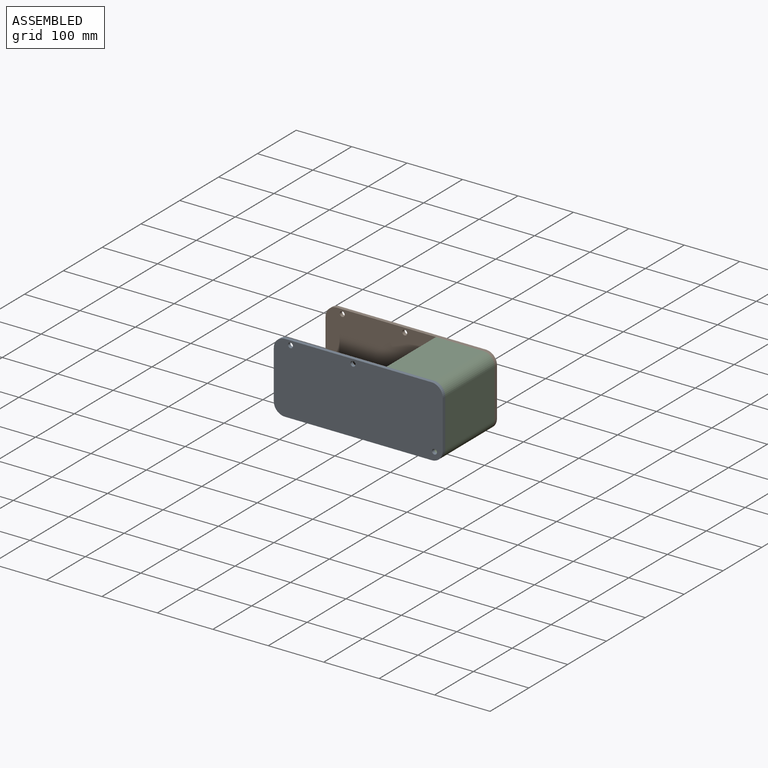
[diagram: assembled view]
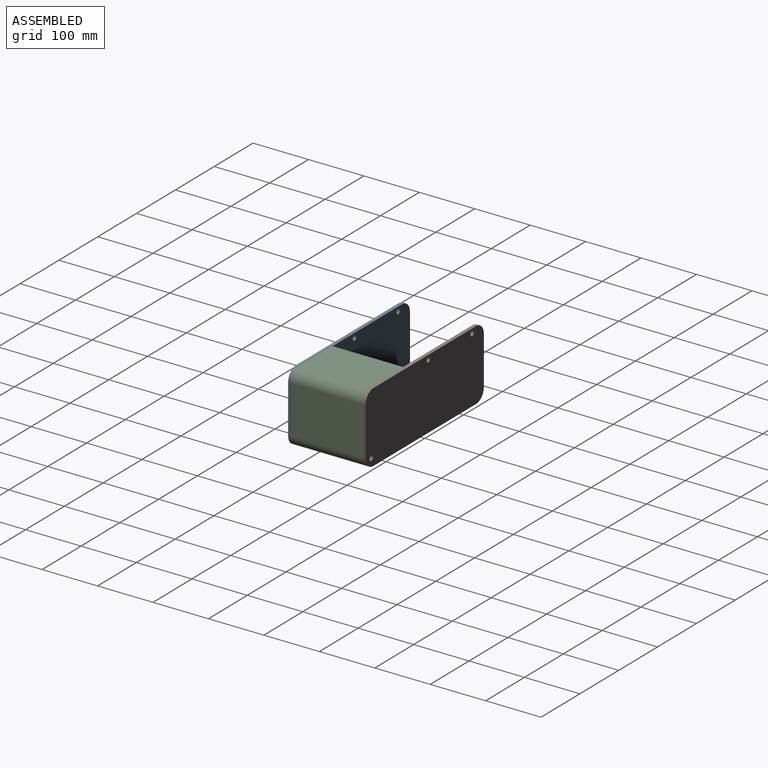
[diagram: assembled view, second angle]
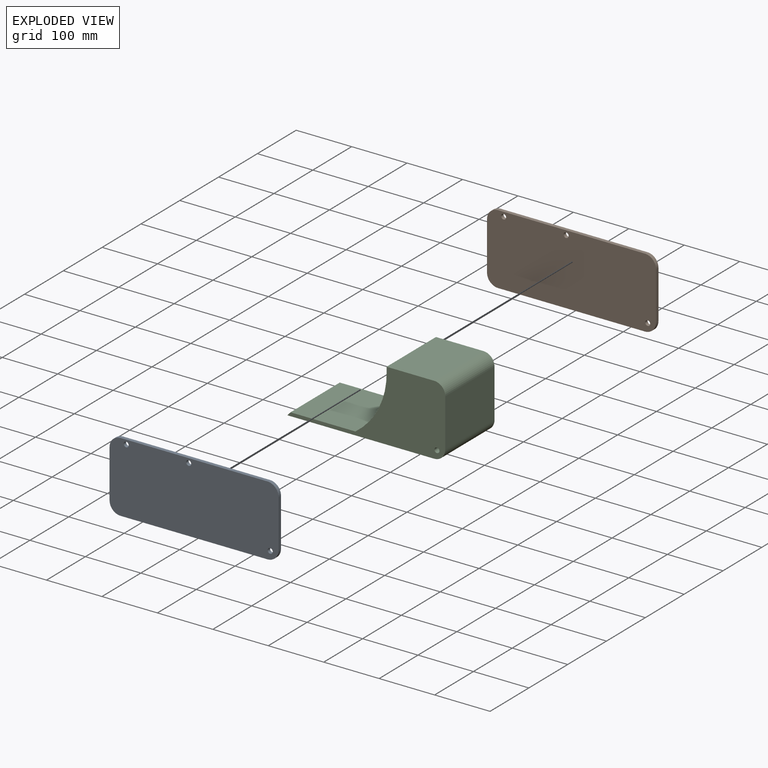
[diagram: exploded view]
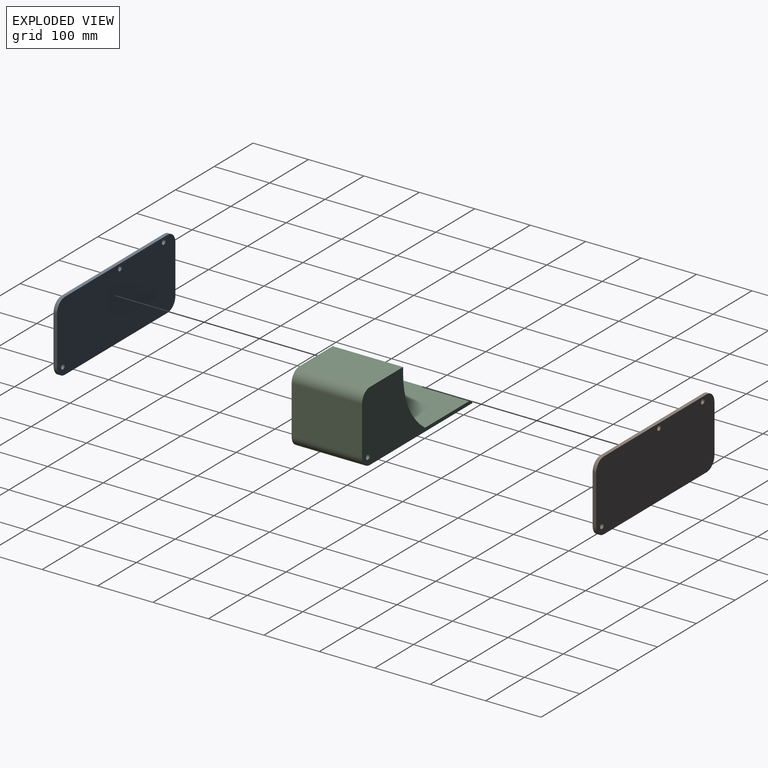
[diagram: exploded view, second angle]
ASSEMBLY  parts=3 mates=2
PART A: 13 faces, bbox 304.8x6.4x127 mm
  f0: plane 264.8x6.35mm, normal (0,0,-1), area 1681.5mm2, adj f1,f9,f11,f12
  f1: cylinder r=20mm len=20mm, axis (0,1,0), area 199.5mm2, adj f0,f2,f11,f12
  f2: plane 87x6.35mm, normal (1,0,0), area 552.4mm2, adj f1,f3,f11,f12
  f3: cylinder r=20mm len=20mm, axis (0,1,0), area 199.5mm2, adj f2,f4,f11,f12
  f4: plane 264.8x6.35mm, normal (0,0,1), area 1681.5mm2, adj f3,f5,f11,f12
  f5: cylinder r=20mm len=20mm, axis (0,1,0), area 199.5mm2, adj f4,f6,f11,f12
  f6: plane 87x6.35mm, normal (-1,0,0), area 552.4mm2, adj f5,f9,f11,f12
  f7: cylinder r=4.5mm len=9mm, axis (0,1,0), area 179.5mm2, adj f11,f12
  f8: cylinder r=4.5mm len=9mm, axis (0,1,0), area 179.5mm2, adj f11,f12
  f9: cylinder r=20mm len=20mm, axis (0,1,0), area 199.5mm2, adj f0,f6,f11,f12
  f10: cylinder r=4.5mm len=9mm, axis (0,1,0), area 179.5mm2, adj f11,f12
  f11: plane 304.8x127mm, normal (0,-1,0), area 38175.4mm2, adj f0,f1,f2,f3,f4,f5,f6,f7
  f12: plane 304.8x127mm, normal (0,1,0), area 38175.4mm2, adj f0,f1,f2,f3,f4,f5,f6,f7
PART B: same geometry as A
PART C: 12 faces, bbox 284.8x127x127 mm
  f0: cylinder r=20mm len=127mm, axis (0,-1,0), area 3989.8mm2, adj f1,f9,f10,f11
  f1: plane 264.8x127mm, normal (0,0,-1), area 33629.6mm2, adj f0,f2,f10,f11
  f2: plane 127x6.35mm, normal (0.74,0,0.67), area 1082.9mm2, adj f1,f3,f10,f11
  f3: plane 127x117.04mm, normal (0,0,1), area 14864.4mm2, adj f2,f4,f10,f11
  f4: cylinder r=135.18mm len=127mm, axis (0,-1,0), area 16641.4mm2, adj f3,f5,f10,f11
  f5: plane 127x8mm, normal (1,0,0), area 1016mm2, adj f4,f6,f10,f11
  f6: plane 127x85.7mm, normal (0,0,1), area 10884.1mm2, adj f5,f7,f10,f11
  f7: cylinder r=20mm len=127mm, axis (0,-1,0), area 3989.8mm2, adj f6,f9,f10,f11
  f8: cylinder r=4.5mm len=127mm, axis (0,-1,0), area 3590.8mm2, adj f10,f11
  f9: plane 127x87mm, normal (-1,0,0), area 11049mm2, adj f0,f7,f10,f11
  f10: plane 284.8x127mm, normal (0,1,0), area 16159.6mm2, adj f0,f1,f2,f3,f4,f5,f6,f7
  f11: plane 284.8x127mm, normal (0,-1,0), area 16159.6mm2, adj f0,f1,f2,f3,f4,f5,f6,f7
PLACE A rot(axis=(0,0,1),180deg) t=(0.01,-139.7,0.1)mm
PLACE B rot(axis=(0,0,1),180deg) t=(0.01,-6.35,0.1)mm
PLACE C rot(axis=(0,0,1),180deg) t=(0.01,-6.35,0.1)mm
MATE fastened A.f8 <-> C.f8  axis (0,1,0) through (137.41,-133.35,-48.4)mm
MATE fastened C.f8 <-> B.f8  axis (0,1,0) through (137.41,-6.35,-48.4)mm
